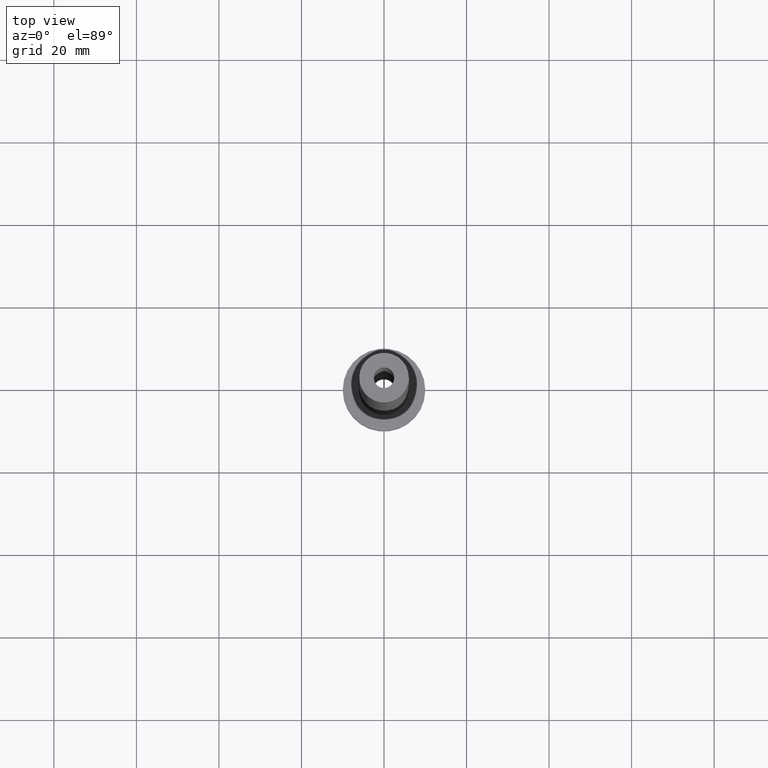
[diagram: clean part render]
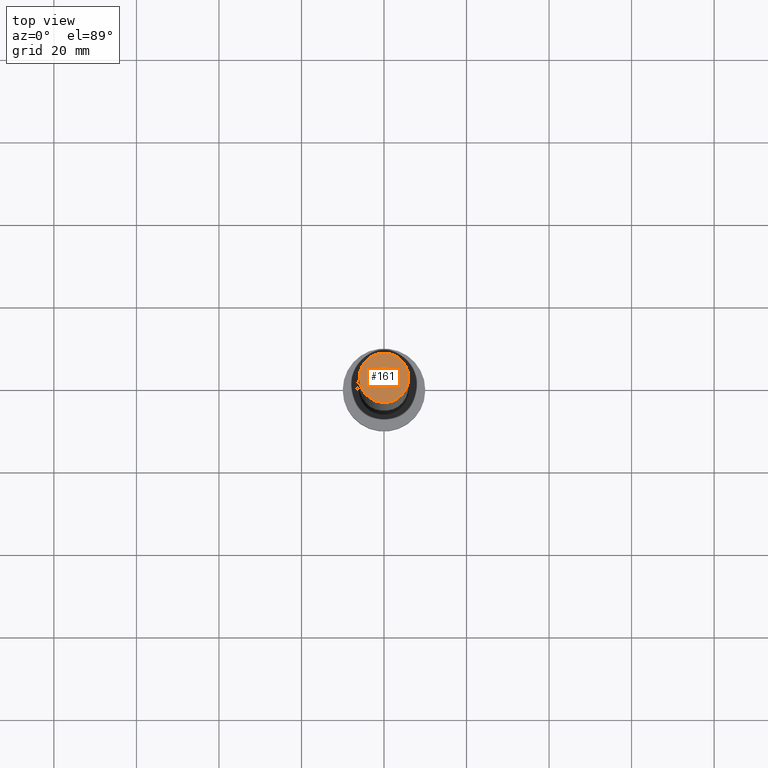
[diagram: same view with one face highlighted and labeled with its STEP entity id]
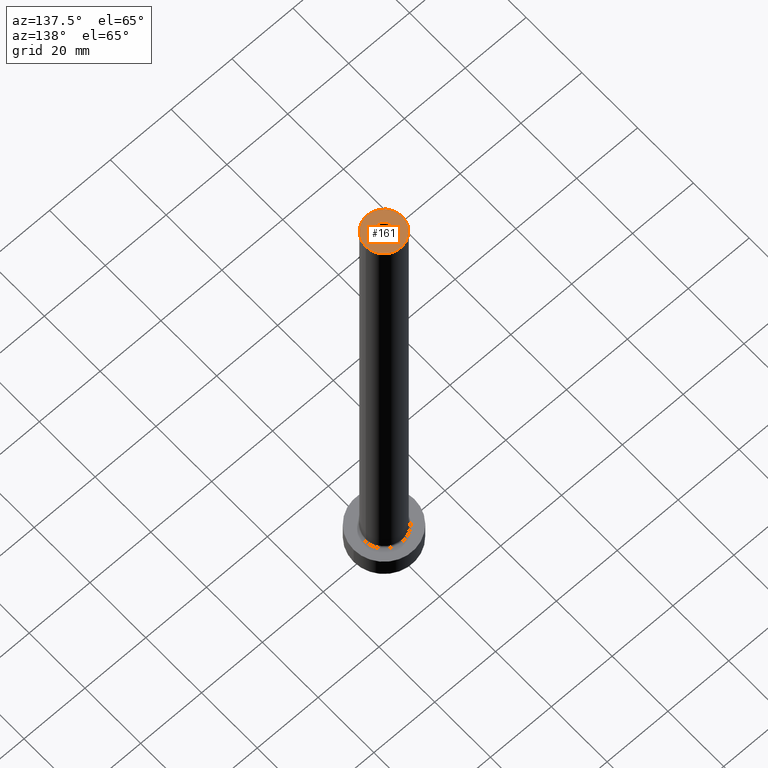
[diagram: same view with one face highlighted and labeled with its STEP entity id]
A machine part, top view. The second image highlights one B-rep face of the part: STEP entity #161.
A second angle (auxiliary view) of the same face is appended — the face is thin or edge-on in the first view.
In plain terms, the highlighted planar face has unit normal (0, 0, 1).
Its self-contained STEP definition (entity closure, byte-faithful):
#5 = ORIENTED_EDGE ( 'NONE', *, *, #51, .T. ) ;
#10 = CARTESIAN_POINT ( 'NONE',  ( 0.000000000000000000, 0.000000000000000000, 175.0000000000000284 ) ) ;
#13 = CARTESIAN_POINT ( 'NONE',  ( 0.000000000000000000, 0.000000000000000000, 175.0000000000000284 ) ) ;
#17 = CARTESIAN_POINT ( 'NONE',  ( 0.000000000000000000, 0.000000000000000000, 175.0000000000000284 ) ) ;
#24 = ORIENTED_EDGE ( 'NONE', *, *, #132, .F. ) ;
#26 = CARTESIAN_POINT ( 'NONE',  ( 0.000000000000000000, 0.000000000000000000, 175.0000000000000284 ) ) ;
#33 = DIRECTION ( 'NONE',  ( 0.000000000000000000, 0.000000000000000000, 1.000000000000000000 ) ) ;
#51 = EDGE_CURVE ( 'NONE', #90, #160, #80, .T. ) ;
#54 = AXIS2_PLACEMENT_3D ( 'NONE', #17, #273, #302 ) ;
#67 = CIRCLE ( 'NONE', #54, 2.500000000000000000 ) ;
#74 = CIRCLE ( 'NONE', #228, 2.500000000000000000 ) ;
#80 = CIRCLE ( 'NONE', #341, 6.000000000000000888 ) ;
#90 = VERTEX_POINT ( 'NONE', #185 ) ;
#96 = FACE_OUTER_BOUND ( 'NONE', #289, .T. ) ;
#115 = VERTEX_POINT ( 'NONE', #126 ) ;
#126 = CARTESIAN_POINT ( 'NONE',  ( -2.500000000000000000, 0.000000000000000000, 175.0000000000000284 ) ) ;
#131 = AXIS2_PLACEMENT_3D ( 'NONE', #13, #195, #335 ) ;
#132 = EDGE_CURVE ( 'NONE', #270, #115, #67, .T. ) ;
#134 = ORIENTED_EDGE ( 'NONE', *, *, #387, .F. ) ;
#139 = CARTESIAN_POINT ( 'NONE',  ( 2.500000000000000000, 3.061616997868383141E-16, 175.0000000000000284 ) ) ;
#142 = EDGE_LOOP ( 'NONE', ( #134, #24 ) ) ;
#160 = VERTEX_POINT ( 'NONE', #197 ) ;
#161 = ADVANCED_FACE ( 'NONE', ( #300, #96 ), #236, .T. ) ;
#182 = AXIS2_PLACEMENT_3D ( 'NONE', #10, #269, #272 ) ;
#185 = CARTESIAN_POINT ( 'NONE',  ( -6.000000000000000888, 0.000000000000000000, 175.0000000000000284 ) ) ;
#187 = CARTESIAN_POINT ( 'NONE',  ( 0.000000000000000000, 0.000000000000000000, 175.0000000000000284 ) ) ;
#195 = DIRECTION ( 'NONE',  ( 0.000000000000000000, 0.000000000000000000, 1.000000000000000000 ) ) ;
#197 = CARTESIAN_POINT ( 'NONE',  ( 6.000000000000000888, 7.347880794884119736E-16, 175.0000000000000284 ) ) ;
#212 = EDGE_CURVE ( 'NONE', #160, #90, #220, .T. ) ;
#220 = CIRCLE ( 'NONE', #182, 6.000000000000000888 ) ;
#228 = AXIS2_PLACEMENT_3D ( 'NONE', #26, #33, #413 ) ;
#236 = PLANE ( 'NONE',  #131 ) ;
#258 = DIRECTION ( 'NONE',  ( 1.000000000000000000, 0.000000000000000000, 0.000000000000000000 ) ) ;
#269 = DIRECTION ( 'NONE',  ( 0.000000000000000000, 0.000000000000000000, 1.000000000000000000 ) ) ;
#270 = VERTEX_POINT ( 'NONE', #139 ) ;
#272 = DIRECTION ( 'NONE',  ( 1.000000000000000000, 0.000000000000000000, 0.000000000000000000 ) ) ;
#273 = DIRECTION ( 'NONE',  ( 0.000000000000000000, 0.000000000000000000, 1.000000000000000000 ) ) ;
#289 = EDGE_LOOP ( 'NONE', ( #5, #400 ) ) ;
#300 = FACE_BOUND ( 'NONE', #142, .T. ) ;
#302 = DIRECTION ( 'NONE',  ( 1.000000000000000000, 0.000000000000000000, 0.000000000000000000 ) ) ;
#322 = DIRECTION ( 'NONE',  ( 0.000000000000000000, 0.000000000000000000, 1.000000000000000000 ) ) ;
#335 = DIRECTION ( 'NONE',  ( 1.000000000000000000, 0.000000000000000000, -0.000000000000000000 ) ) ;
#341 = AXIS2_PLACEMENT_3D ( 'NONE', #187, #322, #258 ) ;
#387 = EDGE_CURVE ( 'NONE', #115, #270, #74, .T. ) ;
#400 = ORIENTED_EDGE ( 'NONE', *, *, #212, .T. ) ;
#413 = DIRECTION ( 'NONE',  ( 1.000000000000000000, 0.000000000000000000, 0.000000000000000000 ) ) ;